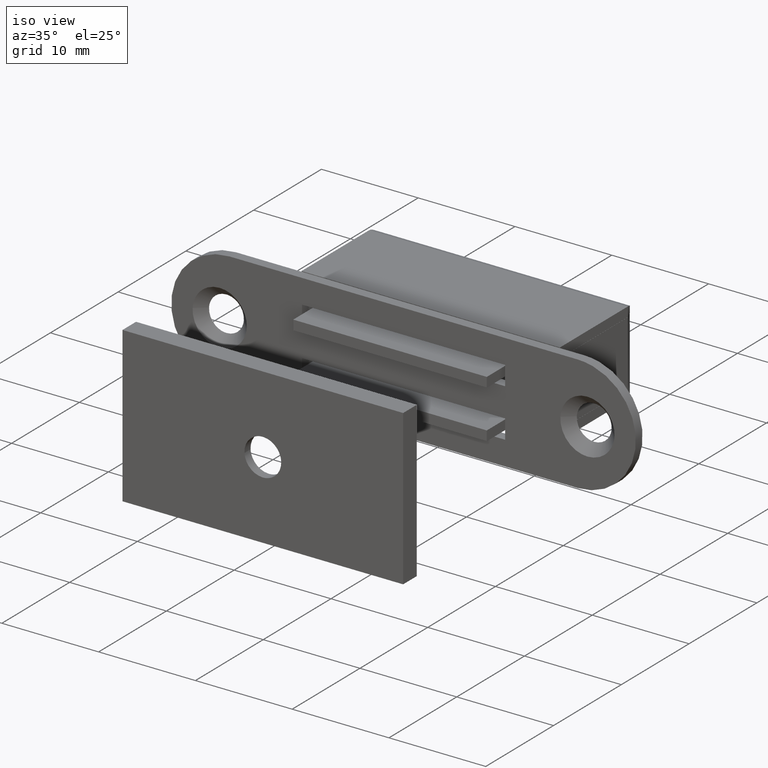
[diagram: clean part render]
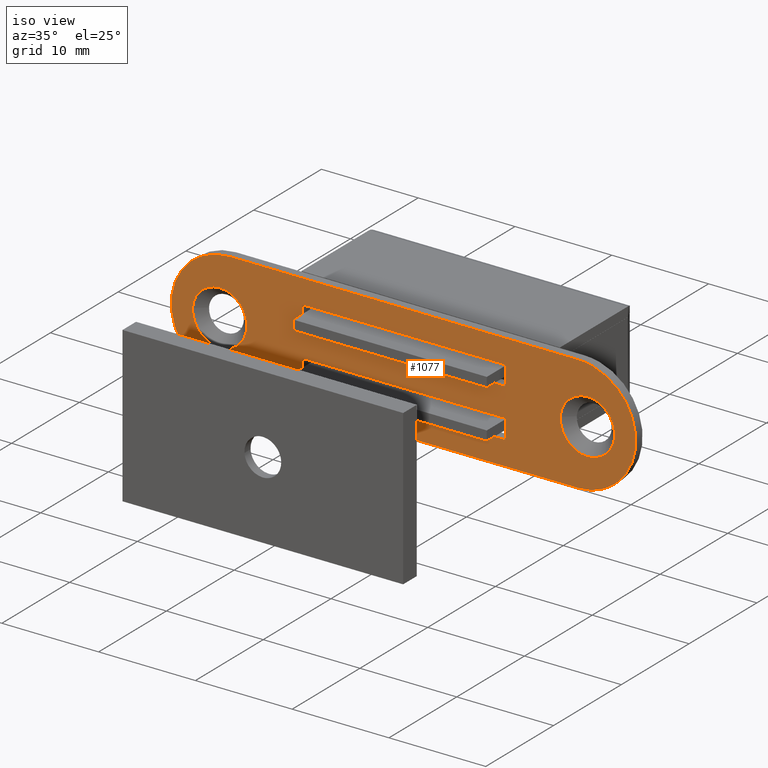
[diagram: same view with one face highlighted and labeled with its STEP entity id]
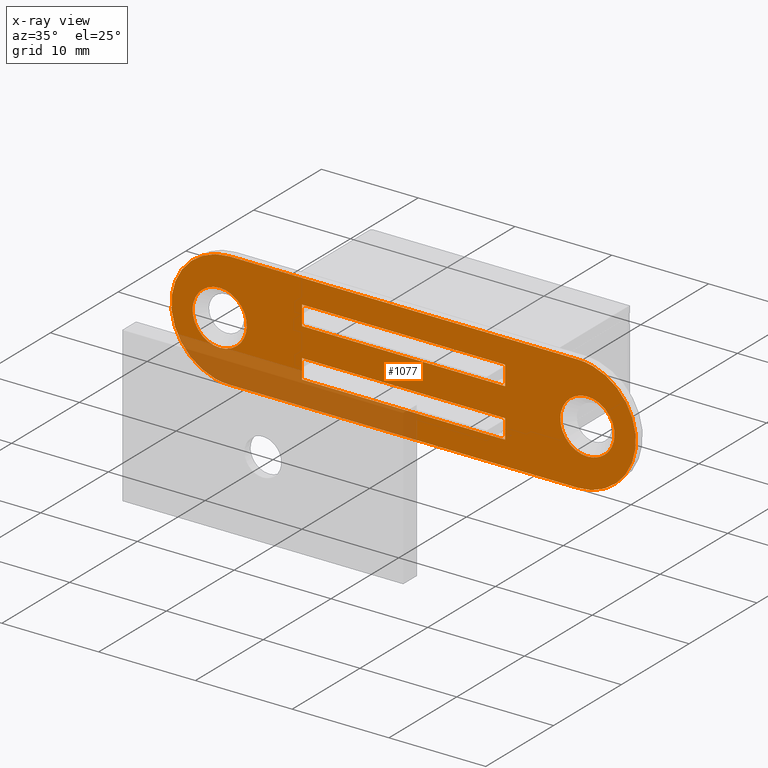
[diagram: x-ray of the same camera — body ghosted, the highlighted face saturated]
A machine part, iso view. The second image highlights one B-rep face of the part: STEP entity #1077.
The next image is the same camera in x-ray: the body ghosted, the highlighted face saturated — about 16% of this face is hidden behind the body in this view.
In plain terms, the highlighted face is a freeform B-spline surface patch.
Its self-contained STEP definition (entity closure, byte-faithful):
#300=CARTESIAN_POINT('',(-16.205222552511220,-15.000000000016600,-0.170935911550686));
#301=VERTEX_POINT('',#300);
#307=CARTESIAN_POINT('',(-19.0,-15.0,2.800000011920830));
#308=VERTEX_POINT('',#307);
#309=CARTESIAN_POINT('',(-16.205222552511213,-15.000000000016598,-0.170935911550686));
#310=CARTESIAN_POINT('',(-16.199999988062842,-15.000000000016355,-0.085547737663598));
#311=CARTESIAN_POINT('',(-16.199999988063091,-15.000000000016110,-9.829361E-013));
#312=CARTESIAN_POINT('',(-16.199999988071376,-15.000000000007802,2.800000011920353));
#313=CARTESIAN_POINT('',(-19.0,-15.0,2.800000011920830));
#321=(BOUNDED_CURVE()B_SPLINE_CURVE(2,(#309,#310,#311,#312,#313),.UNSPECIFIED.,.F.,.U.)B_SPLINE_CURVE_WITH_KNOTS((3,2,3),(0.239332962234293,0.250000000000000,0.500000000000000),.UNSPECIFIED.)CURVE()GEOMETRIC_REPRESENTATION_ITEM()RATIONAL_B_SPLINE_CURVE((0.976072041656751,0.987502787894389,1.0,0.707106781186548,1.0))REPRESENTATION_ITEM(''));
#322=EDGE_CURVE('',#301,#308,#321,.T.);
#324=CARTESIAN_POINT('',(-21.794777447488780,-15.000000000016600,0.170935911550686));
#325=VERTEX_POINT('',#324);
#326=CARTESIAN_POINT('',(-19.0,-15.0,2.800000011920830));
#327=CARTESIAN_POINT('',(-21.633976998440843,-15.000000000008303,2.800000011921337));
#328=CARTESIAN_POINT('',(-21.794777447488787,-15.000000000016597,0.170935911550686));
#336=(BOUNDED_CURVE()B_SPLINE_CURVE(2,(#326,#327,#328),.UNSPECIFIED.,.F.,.U.)B_SPLINE_CURVE_WITH_KNOTS((3,3),(0.500000000000000,0.739332962234293),.UNSPECIFIED.)CURVE()GEOMETRIC_REPRESENTATION_ITEM()RATIONAL_B_SPLINE_CURVE((1.0,0.719603993292158,0.976072041656751))REPRESENTATION_ITEM(''));
#337=EDGE_CURVE('',#308,#325,#336,.T.);
#411=CARTESIAN_POINT('',(-19.0,-15.0,-2.800000011920830));
#412=VERTEX_POINT('',#411);
#413=CARTESIAN_POINT('',(-21.794777447488787,-15.000000000016597,0.170935911550686));
#414=CARTESIAN_POINT('',(-21.800000011937165,-15.000000000016366,0.085547737663598));
#415=CARTESIAN_POINT('',(-21.800000011936909,-15.000000000016110,9.834747E-013));
#416=CARTESIAN_POINT('',(-21.800000011928628,-15.000000000007802,-2.800000011920353));
#417=CARTESIAN_POINT('',(-19.0,-15.0,-2.800000011920830));
#425=(BOUNDED_CURVE()B_SPLINE_CURVE(2,(#413,#414,#415,#416,#417),.UNSPECIFIED.,.F.,.U.)B_SPLINE_CURVE_WITH_KNOTS((3,2,3),(0.739332962234293,0.750000000000000,1.0),.UNSPECIFIED.)CURVE()GEOMETRIC_REPRESENTATION_ITEM()RATIONAL_B_SPLINE_CURVE((0.976072041656751,0.987502787894389,1.0,0.707106781186548,1.0))REPRESENTATION_ITEM(''));
#426=EDGE_CURVE('',#325,#412,#425,.T.);
#428=CARTESIAN_POINT('',(-19.0,-15.0,-2.800000011920830));
#429=CARTESIAN_POINT('',(-16.366023001559167,-15.000000000008303,-2.800000011921337));
#430=CARTESIAN_POINT('',(-16.205222552511220,-15.000000000016597,-0.170935911550686));
#438=(BOUNDED_CURVE()B_SPLINE_CURVE(2,(#428,#429,#430),.UNSPECIFIED.,.F.,.U.)B_SPLINE_CURVE_WITH_KNOTS((3,3),(0.0,0.239332962234293),.UNSPECIFIED.)CURVE()GEOMETRIC_REPRESENTATION_ITEM()RATIONAL_B_SPLINE_CURVE((1.0,0.719603993292158,0.976072041656751))REPRESENTATION_ITEM(''));
#439=EDGE_CURVE('',#412,#301,#438,.T.);
#482=CARTESIAN_POINT('',(21.794777447488780,-15.000000000016600,-0.170935911550686));
#483=VERTEX_POINT('',#482);
#489=CARTESIAN_POINT('',(19.0,-15.0,2.800000011920830));
#490=VERTEX_POINT('',#489);
#491=CARTESIAN_POINT('',(21.794777447488787,-15.000000000016597,-0.170935911550686));
#492=CARTESIAN_POINT('',(21.800000011937165,-15.000000000016366,-0.085547737663598));
#493=CARTESIAN_POINT('',(21.800000011936909,-15.000000000016110,-9.834478E-013));
#494=CARTESIAN_POINT('',(21.800000011928628,-15.000000000007802,2.800000011920353));
#495=CARTESIAN_POINT('',(19.0,-15.0,2.800000011920830));
#503=(BOUNDED_CURVE()B_SPLINE_CURVE(2,(#491,#492,#493,#494,#495),.UNSPECIFIED.,.F.,.U.)B_SPLINE_CURVE_WITH_KNOTS((3,2,3),(0.239332962234293,0.250000000000000,0.500000000000000),.UNSPECIFIED.)CURVE()GEOMETRIC_REPRESENTATION_ITEM()RATIONAL_B_SPLINE_CURVE((0.976072041656751,0.987502787894389,1.0,0.707106781186548,1.0))REPRESENTATION_ITEM(''));
#504=EDGE_CURVE('',#483,#490,#503,.T.);
#506=CARTESIAN_POINT('',(16.205222552511220,-15.000000000016600,0.170935911550686));
#507=VERTEX_POINT('',#506);
#508=CARTESIAN_POINT('',(19.0,-15.0,2.800000011920830));
#509=CARTESIAN_POINT('',(16.366023001559167,-15.000000000008303,2.800000011921337));
#510=CARTESIAN_POINT('',(16.205222552511220,-15.000000000016597,0.170935911550686));
#518=(BOUNDED_CURVE()B_SPLINE_CURVE(2,(#508,#509,#510),.UNSPECIFIED.,.F.,.U.)B_SPLINE_CURVE_WITH_KNOTS((3,3),(0.500000000000000,0.739332962234293),.UNSPECIFIED.)CURVE()GEOMETRIC_REPRESENTATION_ITEM()RATIONAL_B_SPLINE_CURVE((1.0,0.719603993292158,0.976072041656751))REPRESENTATION_ITEM(''));
#519=EDGE_CURVE('',#490,#507,#518,.T.);
#593=CARTESIAN_POINT('',(19.0,-15.0,-2.800000011920830));
#594=VERTEX_POINT('',#593);
#595=CARTESIAN_POINT('',(16.205222552511220,-15.000000000016597,0.170935911550686));
#596=CARTESIAN_POINT('',(16.199999988062842,-15.000000000016366,0.085547737663598));
#597=CARTESIAN_POINT('',(16.199999988063091,-15.000000000016110,9.834747E-013));
#598=CARTESIAN_POINT('',(16.199999988071376,-15.000000000007802,-2.800000011920353));
#599=CARTESIAN_POINT('',(19.0,-15.0,-2.800000011920830));
#607=(BOUNDED_CURVE()B_SPLINE_CURVE(2,(#595,#596,#597,#598,#599),.UNSPECIFIED.,.F.,.U.)B_SPLINE_CURVE_WITH_KNOTS((3,2,3),(0.739332962234293,0.750000000000000,1.0),.UNSPECIFIED.)CURVE()GEOMETRIC_REPRESENTATION_ITEM()RATIONAL_B_SPLINE_CURVE((0.976072041656751,0.987502787894389,1.0,0.707106781186548,1.0))REPRESENTATION_ITEM(''));
#608=EDGE_CURVE('',#507,#594,#607,.T.);
#610=CARTESIAN_POINT('',(19.0,-15.0,-2.800000011920830));
#611=CARTESIAN_POINT('',(21.633976998440843,-15.000000000008303,-2.800000011921337));
#612=CARTESIAN_POINT('',(21.794777447488787,-15.000000000016597,-0.170935911550686));
#620=(BOUNDED_CURVE()B_SPLINE_CURVE(2,(#610,#611,#612),.UNSPECIFIED.,.F.,.U.)B_SPLINE_CURVE_WITH_KNOTS((3,3),(0.0,0.239332962234293),.UNSPECIFIED.)CURVE()GEOMETRIC_REPRESENTATION_ITEM()RATIONAL_B_SPLINE_CURVE((1.0,0.719603993292158,0.976072041656751))REPRESENTATION_ITEM(''));
#621=EDGE_CURVE('',#594,#483,#620,.T.);
#641=CARTESIAN_POINT('',(-10.500000000000000,-15.0,3.500000000000000));
#642=VERTEX_POINT('',#641);
#648=CARTESIAN_POINT('',(-10.500000000000000,-15.0,1.500000000000000));
#649=VERTEX_POINT('',#648);
#650=CARTESIAN_POINT('',(-10.500000000000000,-15.0,1.500000000000000));
#651=CARTESIAN_POINT('',(-10.500000000000000,-15.0,3.500000000000000));
#652=QUASI_UNIFORM_CURVE('',1,(#650,#651),.UNSPECIFIED.,.F.,.U.);
#653=EDGE_CURVE('',#649,#642,#652,.T.);
#709=CARTESIAN_POINT('',(18.0,-15.0,6.0));
#710=VERTEX_POINT('',#709);
#716=CARTESIAN_POINT('',(17.999996125369051,-15.0,-5.999999999998750));
#717=VERTEX_POINT('',#716);
#718=CARTESIAN_POINT('',(17.999996125369051,-15.0,-5.999999999998750));
#719=CARTESIAN_POINT('',(18.368148819860512,-15.0,-6.000041242969221));
#720=CARTESIAN_POINT('',(18.969450267689631,-15.0,-5.944466659352972));
#721=CARTESIAN_POINT('',(19.948008974933401,-14.999999999999980,-5.702584651246760));
#722=CARTESIAN_POINT('',(20.844826048982281,-15.000000000000030,-5.321417298057651));
#723=CARTESIAN_POINT('',(21.645053921463109,-15.000000000000080,-4.790198514929726));
#724=CARTESIAN_POINT('',(22.289573022249328,-14.999999999999931,-4.220296998766727));
#725=CARTESIAN_POINT('',(22.838179692097249,-15.000000000000030,-3.588249145729650));
#726=CARTESIAN_POINT('',(23.309979378565352,-15.000000000000430,-2.838109711667923));
#727=CARTESIAN_POINT('',(23.683806791303621,-14.999999999999609,-1.994765622094537));
#728=CARTESIAN_POINT('',(23.963356333750859,-15.000000000000270,-0.960258882299256));
#729=CARTESIAN_POINT('',(24.039709156711670,-14.999999999999840,0.222988208706281));
#730=CARTESIAN_POINT('',(23.871349124411388,-15.000000000000179,1.381950534255547));
#731=CARTESIAN_POINT('',(23.539970513683340,-14.999999999999790,2.374795434432019));
#732=CARTESIAN_POINT('',(23.049410853367249,-14.999999999999490,3.299409424528762));
#733=CARTESIAN_POINT('',(22.402228343445380,-15.000000000000661,4.123476570833084));
#734=CARTESIAN_POINT('',(21.601833444625768,-14.999999999998280,4.835596380527138));
#735=CARTESIAN_POINT('',(20.848038371248659,-15.000000000000879,5.303254477582811));
#736=CARTESIAN_POINT('',(19.994354106290299,-14.999999999999689,5.681677820752506));
#737=CARTESIAN_POINT('',(19.092184353489021,-15.000000000000210,5.934317181592646));
#738=CARTESIAN_POINT('',(18.355878757157129,-15.000000000000011,6.000027757384849));
#739=CARTESIAN_POINT('',(18.0,-15.0,6.0));
#740=B_SPLINE_CURVE_WITH_KNOTS('',3,(#718,#719,#720,#721,#722,#723,#724,#725,#726,#727,#728,#729,#730,#731,#732,#733,#734,#735,#736,#737,#738,#739),.UNSPECIFIED.,.F.,.U.,(4,1,1,1,1,1,1,1,1,1,1,1,1,1,1,1,1,1,1,4),(0.000000082699348,1.104450487617914,1.803961516421992,3.018879450167587,4.012908497759156,4.675587346055943,5.595974595141087,6.516338421541269,7.326304055335376,8.357133096552184,9.719319984827324,10.860613453779170,11.854642022080510,12.848636053487960,13.989915798515749,14.983948838481229,16.051606125930640,16.640658977083060,17.781953369466429,18.849589365677790),.UNSPECIFIED.);
#741=EDGE_CURVE('',#717,#710,#740,.T.);
#763=CARTESIAN_POINT('',(10.500000000000000,-15.0,3.500000000000000));
#764=VERTEX_POINT('',#763);
#770=CARTESIAN_POINT('',(-10.500000000000000,-15.0,3.500000000000000));
#771=CARTESIAN_POINT('',(10.500000000000000,-15.0,3.500000000000000));
#772=QUASI_UNIFORM_CURVE('',1,(#770,#771),.UNSPECIFIED.,.F.,.U.);
#773=EDGE_CURVE('',#642,#764,#772,.T.);
#791=CARTESIAN_POINT('',(10.500000000000000,-15.0,1.500000000000000));
#792=VERTEX_POINT('',#791);
#798=CARTESIAN_POINT('',(10.500000000000000,-15.0,3.500000000000000));
#799=CARTESIAN_POINT('',(10.500000000000000,-15.0,1.500000000000000));
#800=QUASI_UNIFORM_CURVE('',1,(#798,#799),.UNSPECIFIED.,.F.,.U.);
#801=EDGE_CURVE('',#764,#792,#800,.T.);
#818=CARTESIAN_POINT('',(10.500000000000000,-15.0,1.500000000000000));
#819=CARTESIAN_POINT('',(-10.500000000000000,-15.0,1.500000000000000));
#820=QUASI_UNIFORM_CURVE('',1,(#818,#819),.UNSPECIFIED.,.F.,.U.);
#821=EDGE_CURVE('',#792,#649,#820,.T.);
#839=CARTESIAN_POINT('',(-17.999998115044399,-15.0,5.999999999999711));
#840=VERTEX_POINT('',#839);
#846=CARTESIAN_POINT('',(-17.999998115044399,-15.0,5.999999999999711));
#847=CARTESIAN_POINT('',(18.0,-15.0,6.0));
#848=QUASI_UNIFORM_CURVE('',1,(#846,#847),.UNSPECIFIED.,.F.,.U.);
#849=EDGE_CURVE('',#840,#710,#848,.T.);
#901=CARTESIAN_POINT('',(-18.0,-15.0,-6.0));
#902=VERTEX_POINT('',#901);
#908=CARTESIAN_POINT('',(-17.999998115044399,-15.0,5.999999999999711));
#909=CARTESIAN_POINT('',(-18.319061168033940,-14.999999999999980,6.000018731244802));
#910=CARTESIAN_POINT('',(-18.920371662754910,-15.000000000000060,5.951917221327660));
#911=CARTESIAN_POINT('',(-19.902602290273130,-14.999999999999851,5.721886802961604));
#912=CARTESIAN_POINT('',(-20.844820840335188,-15.000000000000201,5.321410368789926));
#913=CARTESIAN_POINT('',(-21.819513577970412,-14.999999999999950,4.674462888007661));
#914=CARTESIAN_POINT('',(-22.550524621580351,-15.000000000000149,3.956778036638510));
#915=CARTESIAN_POINT('',(-23.188942836020288,-15.000000000000060,3.067786227142802));
#916=CARTESIAN_POINT('',(-23.608133184259540,-14.999999999999980,2.215537414000812));
#917=CARTESIAN_POINT('',(-23.888591196415511,-15.0,1.259313779491508));
#918=CARTESIAN_POINT('',(-24.000377506816431,-14.999999999999901,0.454711106199338));
#919=CARTESIAN_POINT('',(-24.005351470413480,-15.000000000000480,-0.356459510325843));
#920=CARTESIAN_POINT('',(-23.912846157785911,-15.000000000000179,-1.125974283682697));
#921=CARTESIAN_POINT('',(-23.712204125829562,-14.999999999999631,-1.887166598781495));
#922=CARTESIAN_POINT('',(-23.390262516624240,-14.999999999999179,-2.685155068106480));
#923=CARTESIAN_POINT('',(-22.947480758654009,-15.000000000003199,-3.439554319921699));
#924=CARTESIAN_POINT('',(-22.265962536937511,-14.999999999998421,-4.264858956723368));
#925=CARTESIAN_POINT('',(-21.568918976818210,-15.000000000000590,-4.855065168248565));
#926=CARTESIAN_POINT('',(-20.791890018017028,-14.999999999999879,-5.327211506797684));
#927=CARTESIAN_POINT('',(-19.985465043771409,-15.000000000000220,-5.693676959771499));
#928=CARTESIAN_POINT('',(-19.018561659605801,-14.999999999999361,-5.945329770509053));
#929=CARTESIAN_POINT('',(-18.306790113573140,-15.000000000000901,-6.000009625925806));
#930=CARTESIAN_POINT('',(-18.0,-15.0,-6.0));
#931=B_SPLINE_CURVE_WITH_KNOTS('',3,(#908,#909,#910,#911,#912,#913,#914,#915,#916,#917,#918,#919,#920,#921,#922,#923,#924,#925,#926,#927,#928,#929,#930),.UNSPECIFIED.,.F.,.U.,(4,1,1,1,1,1,1,1,1,1,1,1,1,1,1,1,1,1,1,1,4),(0.000000082732804,0.957187531009158,1.803961326033832,3.018879131528768,4.012908074189246,5.301460859713725,6.074580807816945,7.289469919299513,8.136237669117763,9.056637073282062,9.719318958907511,10.566086824458990,11.376024795404350,12.075527007066560,13.143148915247529,13.989914321807889,15.278472435529149,15.867524773340920,16.714288567025410,17.929212278817690,18.849587375993000),.UNSPECIFIED.);
#932=EDGE_CURVE('',#840,#902,#931,.T.);
#949=CARTESIAN_POINT('',(17.999996125369051,-15.0,-5.999999999998750));
#950=CARTESIAN_POINT('',(-18.0,-15.0,-6.0));
#951=QUASI_UNIFORM_CURVE('',1,(#949,#950),.UNSPECIFIED.,.F.,.U.);
#952=EDGE_CURVE('',#717,#902,#951,.T.);
#1018=CARTESIAN_POINT('',(-26.397599906966590,-15.0,6.599399976741671));
#1019=CARTESIAN_POINT('',(26.397601194426681,-15.0,6.599399976741671));
#1020=CARTESIAN_POINT('',(-26.397599906966590,-15.0,-6.599400298606753));
#1021=CARTESIAN_POINT('',(26.397601194426681,-15.0,-6.599400298606753));
#1022=B_SPLINE_SURFACE_WITH_KNOTS('',1,1,((#1018,#1020),(#1019,#1021)),.UNSPECIFIED.,.F.,.F.,.U.,(2,2),(2,2),(0.0,52.795201101393282),(0.0,13.198800275348420),.UNSPECIFIED.);
#1023=ORIENTED_EDGE('',*,*,#952,.F.);
#1024=ORIENTED_EDGE('',*,*,#741,.T.);
#1025=ORIENTED_EDGE('',*,*,#849,.F.);
#1026=ORIENTED_EDGE('',*,*,#932,.T.);
#1027=EDGE_LOOP('',(#1023,#1024,#1025,#1026));
#1028=FACE_OUTER_BOUND('',#1027,.T.);
#1029=CARTESIAN_POINT('',(10.500000000000000,-15.0,-3.500000000000000));
#1030=VERTEX_POINT('',#1029);
#1031=CARTESIAN_POINT('',(10.500000000000000,-15.0,-1.499999999999980));
#1032=VERTEX_POINT('',#1031);
#1033=CARTESIAN_POINT('',(10.500000000000000,-15.0,-3.500000000000000));
#1034=CARTESIAN_POINT('',(10.500000000000000,-15.0,-1.499999999999980));
#1035=QUASI_UNIFORM_CURVE('',1,(#1033,#1034),.UNSPECIFIED.,.F.,.U.);
#1036=EDGE_CURVE('',#1030,#1032,#1035,.T.);
#1037=ORIENTED_EDGE('',*,*,#1036,.F.);
#1038=CARTESIAN_POINT('',(-10.500000000000000,-15.0,-3.500000000000000));
#1039=VERTEX_POINT('',#1038);
#1040=CARTESIAN_POINT('',(-10.500000000000000,-15.0,-3.500000000000000));
#1041=CARTESIAN_POINT('',(10.500000000000000,-15.0,-3.500000000000000));
#1042=QUASI_UNIFORM_CURVE('',1,(#1040,#1041),.UNSPECIFIED.,.F.,.U.);
#1043=EDGE_CURVE('',#1039,#1030,#1042,.T.);
#1044=ORIENTED_EDGE('',*,*,#1043,.F.);
#1045=CARTESIAN_POINT('',(-10.500000000000000,-15.0,-1.499999999999980));
#1046=VERTEX_POINT('',#1045);
#1047=CARTESIAN_POINT('',(-10.500000000000000,-15.0,-1.499999999999980));
#1048=CARTESIAN_POINT('',(-10.500000000000000,-15.0,-3.500000000000000));
#1049=QUASI_UNIFORM_CURVE('',1,(#1047,#1048),.UNSPECIFIED.,.F.,.U.);
#1050=EDGE_CURVE('',#1046,#1039,#1049,.T.);
#1051=ORIENTED_EDGE('',*,*,#1050,.F.);
#1052=CARTESIAN_POINT('',(10.500000000000000,-15.0,-1.499999999999980));
#1053=CARTESIAN_POINT('',(-10.500000000000000,-15.0,-1.499999999999980));
#1054=QUASI_UNIFORM_CURVE('',1,(#1052,#1053),.UNSPECIFIED.,.F.,.U.);
#1055=EDGE_CURVE('',#1032,#1046,#1054,.T.);
#1056=ORIENTED_EDGE('',*,*,#1055,.F.);
#1057=EDGE_LOOP('',(#1037,#1044,#1051,#1056));
#1058=FACE_BOUND('',#1057,.T.);
#1059=ORIENTED_EDGE('',*,*,#821,.T.);
#1060=ORIENTED_EDGE('',*,*,#653,.T.);
#1061=ORIENTED_EDGE('',*,*,#773,.T.);
#1062=ORIENTED_EDGE('',*,*,#801,.T.);
#1063=EDGE_LOOP('',(#1059,#1060,#1061,#1062));
#1064=FACE_BOUND('',#1063,.T.);
#1065=ORIENTED_EDGE('',*,*,#519,.F.);
#1066=ORIENTED_EDGE('',*,*,#504,.F.);
#1067=ORIENTED_EDGE('',*,*,#621,.F.);
#1068=ORIENTED_EDGE('',*,*,#608,.F.);
#1069=EDGE_LOOP('',(#1065,#1066,#1067,#1068));
#1070=FACE_BOUND('',#1069,.T.);
#1071=ORIENTED_EDGE('',*,*,#337,.F.);
#1072=ORIENTED_EDGE('',*,*,#322,.F.);
#1073=ORIENTED_EDGE('',*,*,#439,.F.);
#1074=ORIENTED_EDGE('',*,*,#426,.F.);
#1075=EDGE_LOOP('',(#1071,#1072,#1073,#1074));
#1076=FACE_BOUND('',#1075,.T.);
#1077=ADVANCED_FACE('',(#1028,#1058,#1064,#1070,#1076),#1022,.F.);